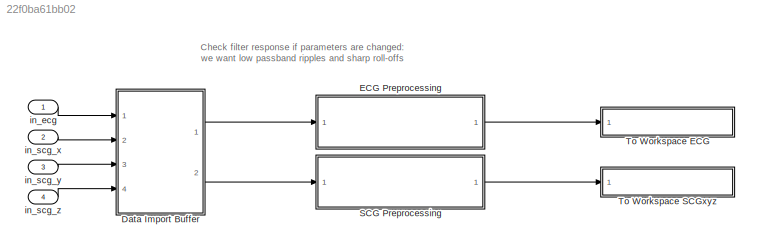
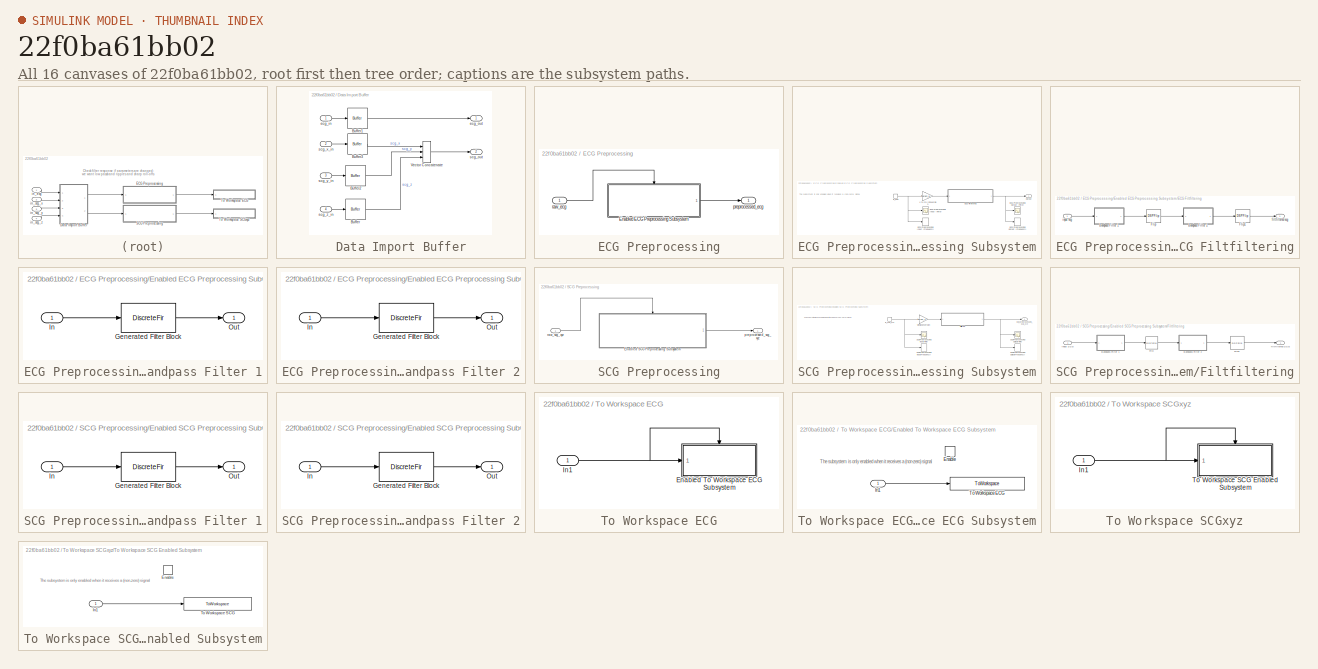
[diagram: thumbnail index - all 16 canvases of the model, root first then tree order]
MODEL slx_22f0ba61bb02
KIND model
CONFIG AbsTol = auto
CONFIG EnableMultiTasking = off
CONFIG FixedStep = 1/fs
CONFIG MaxStep = 1/fs
CONFIG MinStep = auto
CONFIG RelTol = 1e-3
CONFIG SampleTimeConstraint = Unconstrained
CONFIG SolverName = FixedStepDiscrete
CONFIG StartTime = 0.0
CONFIG StopTime = param_sim_time
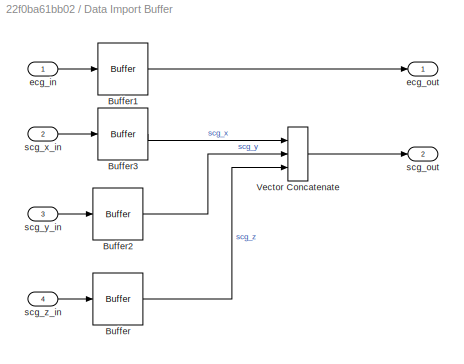
BLOCK [SubSystem] Data Import Buffer
  Ports = [4, 2]
  RequestExecContextInheritance = off
BLOCK [Buffer] Data Import Buffer/Buffer
  N = param_tot_samples
  OutputFrames = off
BLOCK [Buffer] Data Import Buffer/Buffer1
  N = param_tot_samples
  OutputFrames = off
BLOCK [Buffer] Data Import Buffer/Buffer2
  N = param_tot_samples
  OutputFrames = off
BLOCK [Buffer] Data Import Buffer/Buffer3
  N = param_tot_samples
  OutputFrames = off
BLOCK [Concatenate] Data Import Buffer/Vector Concatenate
  ConcatenateDimension = 2
  Mode = Multidimensional array
  NumInputs = 3
  Ports = [3, 1]
BLOCK [Inport] Data Import Buffer/ecg_in
BLOCK [Outport] Data Import Buffer/ecg_out
  VectorParamsAs1DForOutWhenUnconnected = off
BLOCK [Outport] Data Import Buffer/scg_out
  Port = 2
  VectorParamsAs1DForOutWhenUnconnected = off
BLOCK [Inport] Data Import Buffer/scg_x_in
  Port = 2
BLOCK [Inport] Data Import Buffer/scg_y_in
  Port = 3
BLOCK [Inport] Data Import Buffer/scg_z_in
  Port = 4
BLOCK [SubSystem] ECG Preprocessing
  NameLocation = top
  Ports = [1, 1]
  RequestExecContextInheritance = off
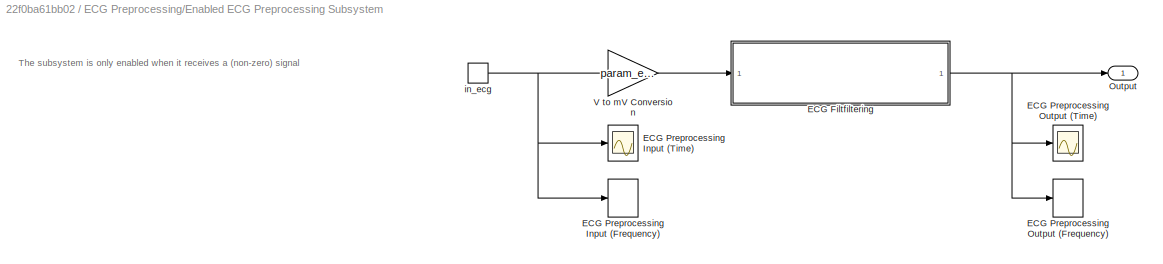
BLOCK [SubSystem] ECG Preprocessing/Enabled ECG Preprocessing Subsystem
  Ports = [0, 1, 1]
  RequestExecContextInheritance = off
  TreatAsAtomicUnit = on
BLOCK [SubSystem] ECG Preprocessing/Enabled ECG Preprocessing Subsystem/ECG Filtfiltering
  Ports = [1, 1]
  RequestExecContextInheritance = off
BLOCK [SubSystem] ECG Preprocessing/Enabled ECG Preprocessing Subsystem/ECG Filtfiltering/Bandpass Filter 1
  CopyFcn = fdesignblkfcn(gcbh, {'CopyFcn'});
  DialogController = fdesignblkfcn
  InitFcn = fdesignblkfcn(gcbh, {'InitFcn'});
  Ports = [1, 1]
  RequestExecContextInheritance = off
  UserDataPersistent = on
BLOCK [DiscreteFir] ECG Preprocessing/Enabled ECG Preprocessing Subsystem/ECG Filtfiltering/Bandpass Filter 1/Generated Filter Block
  Coefficients = [-0.0114243088354877773 0.00587624110456374388 0.00413946068324517157 0.00264334557424035672 0.00138774422276622192 0.00039597756815762733 -0.000357391963790950132 -0.000870027328167087902 -0.00118474210009046274 -0.0013114772414377189 -0.00130211118137258525 -0.00117028348293094116 -0.000969555288066135598 -0.000709991739662891794 -0.000441672338585462343 -0.000165596169411169614 7.38618239838010...<+24253ch>
  InputPortMap = u0
  InputProcessing = Columns as channels (frame based)
  OutputPortMap = o0
  Ports = [1, 1]
  Tag = BlockMethodSubSystem
BLOCK [Inport] ECG Preprocessing/Enabled ECG Preprocessing Subsystem/ECG Filtfiltering/Bandpass Filter 1/In
BLOCK [Outport] ECG Preprocessing/Enabled ECG Preprocessing Subsystem/ECG Filtfiltering/Bandpass Filter 1/Out
  VectorParamsAs1DForOutWhenUnconnected = off
BLOCK [SubSystem] ECG Preprocessing/Enabled ECG Preprocessing Subsystem/ECG Filtfiltering/Bandpass Filter 2
  CopyFcn = fdesignblkfcn(gcbh, {'CopyFcn'});
  DialogController = fdesignblkfcn
  InitFcn = fdesignblkfcn(gcbh, {'InitFcn'});
  Ports = [1, 1]
  RequestExecContextInheritance = off
  UserDataPersistent = on
BLOCK [DiscreteFir] ECG Preprocessing/Enabled ECG Preprocessing Subsystem/ECG Filtfiltering/Bandpass Filter 2/Generated Filter Block
  Coefficients = [-0.0114243088354877773 0.00587624110456374388 0.00413946068324517157 0.00264334557424035672 0.00138774422276622192 0.00039597756815762733 -0.000357391963790950132 -0.000870027328167087902 -0.00118474210009046274 -0.0013114772414377189 -0.00130211118137258525 -0.00117028348293094116 -0.000969555288066135598 -0.000709991739662891794 -0.000441672338585462343 -0.000165596169411169614 7.38618239838010...<+24253ch>
  InputPortMap = u0
  InputProcessing = Columns as channels (frame based)
  OutputPortMap = o0
  Ports = [1, 1]
  Tag = BlockMethodSubSystem
BLOCK [Inport] ECG Preprocessing/Enabled ECG Preprocessing Subsystem/ECG Filtfiltering/Bandpass Filter 2/In
BLOCK [Outport] ECG Preprocessing/Enabled ECG Preprocessing Subsystem/ECG Filtfiltering/Bandpass Filter 2/Out
  VectorParamsAs1DForOutWhenUnconnected = off
BLOCK [DSPFlip] ECG Preprocessing/Enabled ECG Preprocessing Subsystem/ECG Filtfiltering/Flip
BLOCK [DSPFlip] ECG Preprocessing/Enabled ECG Preprocessing Subsystem/ECG Filtfiltering/Flip1
BLOCK [Outport] ECG Preprocessing/Enabled ECG Preprocessing Subsystem/ECG Filtfiltering/filtfiltered ecg
  VectorParamsAs1DForOutWhenUnconnected = off
BLOCK [Inport] ECG Preprocessing/Enabled ECG Preprocessing Subsystem/ECG Filtfiltering/input ecg
BLOCK [SpectrumAnalyzer] ECG Preprocessing/Enabled ECG Preprocessing Subsystem/ECG Preprocessing Input (Frequency)
  Commented = on
  Ports = [1]
  ScopeSpecificationString = spbscopes.SpectrumAnalyzerBlockCfg('CurrentConfiguration', extmgr.ConfigurationSet(extmgr.Configuration('Core','General UI',true),extmgr.Configuration('Core','Source UI',true),extmgr.Configuration('Sources','WiredSimulink',true),extmgr.Configuration('Visuals','Spectrum',true,'AxesProperties',struct('Color',{[0 0 0],[0 0 0]},'XColor',{[0.686274509803922 0.686274509803922 0.686274509803922],[0.68627...<+2122ch>
BLOCK [Scope] ECG Preprocessing/Enabled ECG Preprocessing Subsystem/ECG Preprocessing Input (Time)
  Commented = on
  Floating = off
  NumInputPorts = 1
  Ports = [1]
  ScopeSpecificationString = Simulink.scopes.TimeScopeBlockCfg('CurrentConfiguration', extmgr.ConfigurationSet(extmgr.Configuration('Core','General UI',true),extmgr.Configuration('Core','Source UI',true),extmgr.Configuration('Sources','WiredSimulink',true,'DataLoggingMaxPoints','tot_samples','DataLoggingVariableName','ScopeData1'),extmgr.Configuration('Visuals','Time Domain',true,'InputProcessing','FrameProcessing','Serialize...<+1708ch>
BLOCK [SpectrumAnalyzer] ECG Preprocessing/Enabled ECG Preprocessing Subsystem/ECG Preprocessing Output (Frequency)
  Commented = on
  Ports = [1]
  ScopeSpecificationString = spbscopes.SpectrumAnalyzerBlockCfg('CurrentConfiguration', extmgr.ConfigurationSet(extmgr.Configuration('Core','General UI',true),extmgr.Configuration('Core','Source UI',true),extmgr.Configuration('Sources','WiredSimulink',true),extmgr.Configuration('Visuals','Spectrum',true,'AxesProperties',struct('Color',{[0 0 0],[0 0 0]},'XColor',{[0.686274509803922 0.686274509803922 0.686274509803922],[0.68627...<+2304ch>
BLOCK [Scope] ECG Preprocessing/Enabled ECG Preprocessing Subsystem/ECG Preprocessing Output (Time)
  Commented = on
  Floating = off
  NumInputPorts = 1
  Ports = [1]
  ScopeSpecificationString = Simulink.scopes.TimeScopeBlockCfg('CurrentConfiguration', extmgr.ConfigurationSet(extmgr.Configuration('Core','General UI',true),extmgr.Configuration('Core','Source UI',true),extmgr.Configuration('Sources','WiredSimulink',true,'DataLoggingMaxPoints','tot_samples','DataLoggingVariableName','ScopeData2'),extmgr.Configuration('Visuals','Time Domain',true,'InputProcessing','FrameProcessing','Serialize...<+1735ch>
BLOCK [Outport] ECG Preprocessing/Enabled ECG Preprocessing Subsystem/Output
  VectorParamsAs1DForOutWhenUnconnected = off
BLOCK [Gain] ECG Preprocessing/Enabled ECG Preprocessing Subsystem/V to mV Conversion
  Gain = param_ecg_gain_mv
BLOCK [EnablePort] ECG Preprocessing/Enabled ECG Preprocessing Subsystem/in_ecg
  Ports = [0, 1]
  ShowOutputPort = on
BLOCK [Outport] ECG Preprocessing/preprocessed_ecg
  VectorParamsAs1DForOutWhenUnconnected = off
BLOCK [Inport] ECG Preprocessing/raw_ecg
BLOCK [SubSystem] SCG Preprocessing
  Ports = [1, 1]
  RequestExecContextInheritance = off
BLOCK [SubSystem] SCG Preprocessing/Enabled SCG Preprocessing Subsystem
  Ports = [0, 1, 1]
  RequestExecContextInheritance = off
  TreatAsAtomicUnit = on
BLOCK [SubSystem] SCG Preprocessing/Enabled SCG Preprocessing Subsystem/Filtfiltering
  Ports = [1, 1]
  RequestExecContextInheritance = off
BLOCK [Inport] SCG Preprocessing/Enabled SCG Preprocessing Subsystem/Filtfiltering/ input SCG
BLOCK [SubSystem] SCG Preprocessing/Enabled SCG Preprocessing Subsystem/Filtfiltering/Bandpass Filter 1
  CopyFcn = fdesignblkfcn(gcbh, {'CopyFcn'});
  DialogController = fdesignblkfcn
  InitFcn = fdesignblkfcn(gcbh, {'InitFcn'});
  Ports = [1, 1]
  RequestExecContextInheritance = off
  UserDataPersistent = on
BLOCK [DiscreteFir] SCG Preprocessing/Enabled SCG Preprocessing Subsystem/Filtfiltering/Bandpass Filter 1/Generated Filter Block
  Coefficients = [-0.0141280809748904439 0.00296128789229228515 0.00257104999710804256 0.00216178345802768047 0.00175552729414372999 0.00135185618919184472 0.000971465225508600858 0.000611761661220453987 0.000291406420521167497 4.82187739932540826e-06 -0.000231481095028417821 -0.000426883300566277893 -0.000566810793415693445 -0.000665092291782963183 -0.000708283395739488578 -0.000716103852974601593 -0.000671547633...<+17305ch>
  InputPortMap = u0
  InputProcessing = Columns as channels (frame based)
  OutputPortMap = o0
  Ports = [1, 1]
  Tag = BlockMethodSubSystem
BLOCK [Inport] SCG Preprocessing/Enabled SCG Preprocessing Subsystem/Filtfiltering/Bandpass Filter 1/In
BLOCK [Outport] SCG Preprocessing/Enabled SCG Preprocessing Subsystem/Filtfiltering/Bandpass Filter 1/Out
  VectorParamsAs1DForOutWhenUnconnected = off
BLOCK [SubSystem] SCG Preprocessing/Enabled SCG Preprocessing Subsystem/Filtfiltering/Bandpass Filter 2
  CopyFcn = fdesignblkfcn(gcbh, {'CopyFcn'});
  DialogController = fdesignblkfcn
  InitFcn = fdesignblkfcn(gcbh, {'InitFcn'});
  Ports = [1, 1]
  RequestExecContextInheritance = off
  UserDataPersistent = on
BLOCK [DiscreteFir] SCG Preprocessing/Enabled SCG Preprocessing Subsystem/Filtfiltering/Bandpass Filter 2/Generated Filter Block
  Coefficients = [-0.0141280809748904439 0.00296128789229228515 0.00257104999710804256 0.00216178345802768047 0.00175552729414372999 0.00135185618919184472 0.000971465225508600858 0.000611761661220453987 0.000291406420521167497 4.82187739932540826e-06 -0.000231481095028417821 -0.000426883300566277893 -0.000566810793415693445 -0.000665092291782963183 -0.000708283395739488578 -0.000716103852974601593 -0.000671547633...<+17305ch>
  InputPortMap = u0
  InputProcessing = Columns as channels (frame based)
  OutputPortMap = o0
  Ports = [1, 1]
  Tag = BlockMethodSubSystem
BLOCK [Inport] SCG Preprocessing/Enabled SCG Preprocessing Subsystem/Filtfiltering/Bandpass Filter 2/In
BLOCK [Outport] SCG Preprocessing/Enabled SCG Preprocessing Subsystem/Filtfiltering/Bandpass Filter 2/Out
  VectorParamsAs1DForOutWhenUnconnected = off
BLOCK [DSPFlip] SCG Preprocessing/Enabled SCG Preprocessing Subsystem/Filtfiltering/Flip
BLOCK [DSPFlip] SCG Preprocessing/Enabled SCG Preprocessing Subsystem/Filtfiltering/Flip1
BLOCK [Outport] SCG Preprocessing/Enabled SCG Preprocessing Subsystem/Filtfiltering/filtfiltered SCG
  VectorParamsAs1DForOutWhenUnconnected = off
BLOCK [SpectrumAnalyzer] SCG Preprocessing/Enabled SCG Preprocessing Subsystem/SCG Preprocessing Input (Frequency)
  Commented = on
  Ports = [1]
  ScopeSpecificationString = spbscopes.SpectrumAnalyzerBlockCfg('CurrentConfiguration', extmgr.ConfigurationSet(extmgr.Configuration('Core','General UI',true),extmgr.Configuration('Core','Source UI',true),extmgr.Configuration('Sources','WiredSimulink',true),extmgr.Configuration('Sources','SimulinkEvent',false),extmgr.Configuration('Sources','Simulink',false),extmgr.Configuration('Sources','SPTool',false),extmgr.Configuration(...<+3857ch>
BLOCK [Scope] SCG Preprocessing/Enabled SCG Preprocessing Subsystem/SCG Preprocessing Input (Time)
  Commented = on
  Floating = off
  NumInputPorts = 1
  Ports = [1]
  ScopeSpecificationString = Simulink.scopes.TimeScopeBlockCfg('CurrentConfiguration', extmgr.ConfigurationSet(extmgr.Configuration('Core','General UI',true),extmgr.Configuration('Core','Source UI',true),extmgr.Configuration('Sources','WiredSimulink',true,'DataLoggingMaxPoints','tot_samples','DataLoggingVariableName','ScopeData3'),extmgr.Configuration('Visuals','Time Domain',true,'InputProcessing','FrameProcessing','Serialize...<+1769ch>
BLOCK [SpectrumAnalyzer] SCG Preprocessing/Enabled SCG Preprocessing Subsystem/SCG Preprocessing Output (Frequency)
  Commented = on
  Ports = [1]
  ScopeSpecificationString = spbscopes.SpectrumAnalyzerBlockCfg('CurrentConfiguration', extmgr.ConfigurationSet(extmgr.Configuration('Core','General UI',true),extmgr.Configuration('Core','Source UI',true),extmgr.Configuration('Sources','WiredSimulink',true),extmgr.Configuration('Sources','SimulinkEvent',false),extmgr.Configuration('Sources','Simulink',false),extmgr.Configuration('Sources','SPTool',false),extmgr.Configuration(...<+3927ch>
BLOCK [Scope] SCG Preprocessing/Enabled SCG Preprocessing Subsystem/SCG Preprocessing Output (Time)
  Commented = on
  Floating = off
  NumInputPorts = 1
  Ports = [1]
  ScopeSpecificationString = Simulink.scopes.TimeScopeBlockCfg('CurrentConfiguration', extmgr.ConfigurationSet(extmgr.Configuration('Core','General UI',true),extmgr.Configuration('Core','Source UI',true),extmgr.Configuration('Sources','WiredSimulink',true,'DataLoggingMaxPoints','tot_samples'),extmgr.Configuration('Visuals','Time Domain',true,'InputProcessing','FrameProcessing','SerializedDisplays',{struct('MinYLimReal','-50.6...<+1764ch>
BLOCK [Gain] SCG Preprocessing/Enabled SCG Preprocessing Subsystem/V to mg Conversion
  Gain = param_scg_gain_mg
BLOCK [EnablePort] SCG Preprocessing/Enabled SCG Preprocessing Subsystem/in_scg_xyz
  Ports = [0, 1]
  ShowOutputPort = on
BLOCK [Outport] SCG Preprocessing/Enabled SCG Preprocessing Subsystem/out_preprocessed_scg_xyz
  VectorParamsAs1DForOutWhenUnconnected = off
BLOCK [Outport] SCG Preprocessing/preprocessed_scg_xyz
  VectorParamsAs1DForOutWhenUnconnected = off
BLOCK [Inport] SCG Preprocessing/raw_scg_xyz
BLOCK [SubSystem] To Workspace ECG
  Ports = [1]
  RequestExecContextInheritance = off
BLOCK [SubSystem] To Workspace ECG/Enabled To Workspace ECG Subsystem
  Ports = [1, 0, 1]
  RequestExecContextInheritance = off
  TreatAsAtomicUnit = on
BLOCK [EnablePort] To Workspace ECG/Enabled To Workspace ECG Subsystem/Enable
  Ports = []
BLOCK [Inport] To Workspace ECG/Enabled To Workspace ECG Subsystem/In1
BLOCK [ToWorkspace] To Workspace ECG/Enabled To Workspace ECG Subsystem/To Workspace ECG
  FixptAsFi = on
  MaxDataPoints = inf
  Ports = [1]
  SampleTime = -1
  SaveFormat = Structure
  VariableName = out_ecg_preprocessing
BLOCK [Inport] To Workspace ECG/In1
BLOCK [SubSystem] To Workspace SCGxyz
  Ports = [1]
  RequestExecContextInheritance = off
BLOCK [Inport] To Workspace SCGxyz/In1
BLOCK [SubSystem] To Workspace SCGxyz/To Workspace SCG Enabled Subsystem
  Ports = [1, 0, 1]
  RequestExecContextInheritance = off
  TreatAsAtomicUnit = on
BLOCK [EnablePort] To Workspace SCGxyz/To Workspace SCG Enabled Subsystem/Enable
  Ports = []
BLOCK [Inport] To Workspace SCGxyz/To Workspace SCG Enabled Subsystem/In1
BLOCK [ToWorkspace] To Workspace SCGxyz/To Workspace SCG Enabled Subsystem/To Workspace SCG
  FixptAsFi = on
  MaxDataPoints = inf
  Ports = [1]
  SampleTime = -1
  SaveFormat = Structure
  VariableName = out_scg_xyz_preprocessing
BLOCK [Inport] in_ecg
  SampleTime = 1/fs
BLOCK [Inport] in_scg_x
  Port = 2
  SampleTime = 1/fs
BLOCK [Inport] in_scg_y
  Port = 3
  SampleTime = 1/fs
BLOCK [Inport] in_scg_z
  Port = 4
  SampleTime = 1/fs
ANNOTATION (root): Check filter response if parameters are changed: we want low passband ripples and sharp roll-offs
ANNOTATION ECG Preprocessing/Enabled ECG Preprocessing Subsystem: The subsystem is only enabled when it receives a (non-zero) signal
ANNOTATION SCG Preprocessing/Enabled SCG Preprocessing Subsystem: The subsystem is only enabled when it receives a (non-zero) signal
ANNOTATION To Workspace ECG/Enabled To Workspace ECG Subsystem: The subsystem is only enabled when it receives a (non-zero) signal
ANNOTATION To Workspace SCGxyz/To Workspace SCG Enabled Subsystem: The subsystem is only enabled when it receives a (non-zero) signal
LINE Data Import Buffer/Buffer1:1 -> Data Import Buffer/ecg_out:1
LINE Data Import Buffer/Buffer2:1 -> Data Import Buffer/Vector Concatenate:2
LINE Data Import Buffer/Buffer3:1 -> Data Import Buffer/Vector Concatenate:1
LINE Data Import Buffer/Buffer:1 -> Data Import Buffer/Vector Concatenate:3
LINE Data Import Buffer/Vector Concatenate:1 -> Data Import Buffer/scg_out:1
LINE Data Import Buffer/ecg_in:1 -> Data Import Buffer/Buffer1:1
LINE Data Import Buffer/scg_x_in:1 -> Data Import Buffer/Buffer3:1
LINE Data Import Buffer/scg_y_in:1 -> Data Import Buffer/Buffer2:1
LINE Data Import Buffer/scg_z_in:1 -> Data Import Buffer/Buffer:1
LINE Data Import Buffer:1 -> ECG Preprocessing:1
LINE Data Import Buffer:2 -> SCG Preprocessing:1
LINE ECG Preprocessing/Enabled ECG Preprocessing Subsystem/ECG Filtfiltering/Bandpass Filter 1:1 -> ECG Preprocessing/Enabled ECG Preprocessing Subsystem/ECG Filtfiltering/Flip:1
LINE ECG Preprocessing/Enabled ECG Preprocessing Subsystem/ECG Filtfiltering/Bandpass Filter 2:1 -> ECG Preprocessing/Enabled ECG Preprocessing Subsystem/ECG Filtfiltering/Flip1:1
LINE ECG Preprocessing/Enabled ECG Preprocessing Subsystem/ECG Filtfiltering/Flip1:1 -> ECG Preprocessing/Enabled ECG Preprocessing Subsystem/ECG Filtfiltering/filtfiltered ecg:1
LINE ECG Preprocessing/Enabled ECG Preprocessing Subsystem/ECG Filtfiltering/Flip:1 -> ECG Preprocessing/Enabled ECG Preprocessing Subsystem/ECG Filtfiltering/Bandpass Filter 2:1
LINE ECG Preprocessing/Enabled ECG Preprocessing Subsystem/ECG Filtfiltering/input ecg:1 -> ECG Preprocessing/Enabled ECG Preprocessing Subsystem/ECG Filtfiltering/Bandpass Filter 1:1
NET ECG Preprocessing/Enabled ECG Preprocessing Subsystem/ECG Filtfiltering:1 -> ECG Preprocessing/Enabled ECG Preprocessing Subsystem/ECG Preprocessing Output (Frequency):1, ECG Preprocessing/Enabled ECG Preprocessing Subsystem/ECG Preprocessing Output (Time):1, ECG Preprocessing/Enabled ECG Preprocessing Subsystem/Output:1
LINE ECG Preprocessing/Enabled ECG Preprocessing Subsystem/V to mV Conversion:1 -> ECG Preprocessing/Enabled ECG Preprocessing Subsystem/ECG Filtfiltering:1
NET ECG Preprocessing/Enabled ECG Preprocessing Subsystem/in_ecg:1 -> ECG Preprocessing/Enabled ECG Preprocessing Subsystem/ECG Preprocessing Input (Frequency):1, ECG Preprocessing/Enabled ECG Preprocessing Subsystem/ECG Preprocessing Input (Time):1, ECG Preprocessing/Enabled ECG Preprocessing Subsystem/V to mV Conversion:1
LINE ECG Preprocessing/Enabled ECG Preprocessing Subsystem:1 -> ECG Preprocessing/preprocessed_ecg:1
LINE ECG Preprocessing/raw_ecg:1 -> ECG Preprocessing/Enabled ECG Preprocessing Subsystem:enable
LINE ECG Preprocessing:1 -> To Workspace ECG:1
LINE SCG Preprocessing/Enabled SCG Preprocessing Subsystem/Filtfiltering/ input SCG:1 -> SCG Preprocessing/Enabled SCG Preprocessing Subsystem/Filtfiltering/Bandpass Filter 1:1
LINE SCG Preprocessing/Enabled SCG Preprocessing Subsystem/Filtfiltering/Bandpass Filter 1:1 -> SCG Preprocessing/Enabled SCG Preprocessing Subsystem/Filtfiltering/Flip:1
LINE SCG Preprocessing/Enabled SCG Preprocessing Subsystem/Filtfiltering/Bandpass Filter 2:1 -> SCG Preprocessing/Enabled SCG Preprocessing Subsystem/Filtfiltering/Flip1:1
LINE SCG Preprocessing/Enabled SCG Preprocessing Subsystem/Filtfiltering/Flip1:1 -> SCG Preprocessing/Enabled SCG Preprocessing Subsystem/Filtfiltering/filtfiltered SCG:1
LINE SCG Preprocessing/Enabled SCG Preprocessing Subsystem/Filtfiltering/Flip:1 -> SCG Preprocessing/Enabled SCG Preprocessing Subsystem/Filtfiltering/Bandpass Filter 2:1
NET SCG Preprocessing/Enabled SCG Preprocessing Subsystem/Filtfiltering:1 -> SCG Preprocessing/Enabled SCG Preprocessing Subsystem/SCG Preprocessing Output (Frequency):1, SCG Preprocessing/Enabled SCG Preprocessing Subsystem/SCG Preprocessing Output (Time):1, SCG Preprocessing/Enabled SCG Preprocessing Subsystem/out_preprocessed_scg_xyz:1
LINE SCG Preprocessing/Enabled SCG Preprocessing Subsystem/V to mg Conversion:1 -> SCG Preprocessing/Enabled SCG Preprocessing Subsystem/Filtfiltering:1
NET SCG Preprocessing/Enabled SCG Preprocessing Subsystem/in_scg_xyz:1 -> SCG Preprocessing/Enabled SCG Preprocessing Subsystem/SCG Preprocessing Input (Frequency):1, SCG Preprocessing/Enabled SCG Preprocessing Subsystem/SCG Preprocessing Input (Time):1, SCG Preprocessing/Enabled SCG Preprocessing Subsystem/V to mg Conversion:1
LINE SCG Preprocessing/Enabled SCG Preprocessing Subsystem:1 -> SCG Preprocessing/preprocessed_scg_xyz:1
LINE SCG Preprocessing/raw_scg_xyz:1 -> SCG Preprocessing/Enabled SCG Preprocessing Subsystem:enable
LINE SCG Preprocessing:1 -> To Workspace SCGxyz:1
LINE To Workspace ECG/Enabled To Workspace ECG Subsystem/In1:1 -> To Workspace ECG/Enabled To Workspace ECG Subsystem/To Workspace ECG:1
NET To Workspace ECG/In1:1 -> To Workspace ECG/Enabled To Workspace ECG Subsystem:1, To Workspace ECG/Enabled To Workspace ECG Subsystem:enable
NET To Workspace SCGxyz/In1:1 -> To Workspace SCGxyz/To Workspace SCG Enabled Subsystem:1, To Workspace SCGxyz/To Workspace SCG Enabled Subsystem:enable
LINE To Workspace SCGxyz/To Workspace SCG Enabled Subsystem/In1:1 -> To Workspace SCGxyz/To Workspace SCG Enabled Subsystem/To Workspace SCG:1
LINE in_ecg:1 -> Data Import Buffer:1
LINE in_scg_x:1 -> Data Import Buffer:2
LINE in_scg_y:1 -> Data Import Buffer:3
LINE in_scg_z:1 -> Data Import Buffer:4
note: NET lines group one-source signal fan-out (src -> all destinations, sorted); 1:1 wires keep LINE
